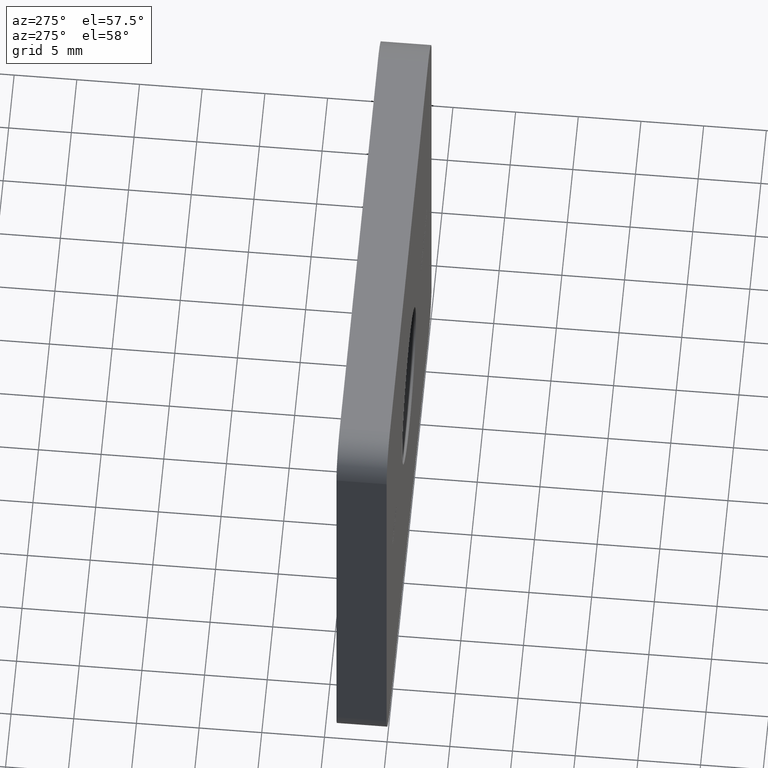
[diagram: clean part render]
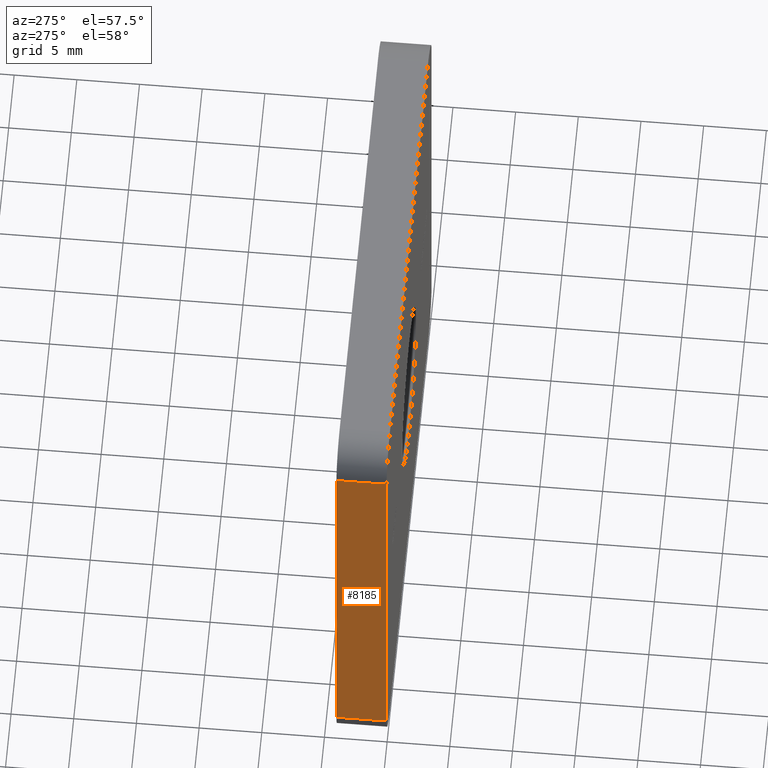
[diagram: same view with one face highlighted and labeled with its STEP entity id]
A machine part, auxiliary view. The second image highlights one B-rep face of the part: STEP entity #8185.
In plain terms, the highlighted planar face has unit normal (1, 0, -0).
Its self-contained STEP definition (entity closure, byte-faithful):
#1055 = VERTEX_POINT ( 'NONE', #6517 ) ;
#1904 = VECTOR ( 'NONE', #3356, 1000.000000000000000 ) ;
#2107 = EDGE_LOOP ( 'NONE', ( #4869, #5918, #6941, #16051 ) ) ;
#2726 = LINE ( 'NONE', #8944, #10073 ) ;
#3289 = VERTEX_POINT ( 'NONE', #15220 ) ;
#3356 = DIRECTION ( 'NONE',  ( -0.000000000000000000, 1.000000000000000000, -0.000000000000000000 ) ) ;
#3826 = VERTEX_POINT ( 'NONE', #7499 ) ;
#4354 = CARTESIAN_POINT ( 'NONE',  ( -20.50000000000000355, 4.000000000000000000, -17.49999999999999645 ) ) ;
#4441 = CARTESIAN_POINT ( 'NONE',  ( -20.50000000000000355, 0.000000000000000000, -17.49999999999999645 ) ) ;
#4869 = ORIENTED_EDGE ( 'NONE', *, *, #6839, .T. ) ;
#5130 = LINE ( 'NONE', #9687, #1904 ) ;
#5263 = CARTESIAN_POINT ( 'NONE',  ( -20.50000000000000355, 4.000000000000000000, -20.49999999999999645 ) ) ;
#5918 = ORIENTED_EDGE ( 'NONE', *, *, #8726, .T. ) ;
#6517 = CARTESIAN_POINT ( 'NONE',  ( -20.50000000000000355, 4.000000000000000000, -17.49999999999999645 ) ) ;
#6544 = LINE ( 'NONE', #15721, #9311 ) ;
#6839 = EDGE_CURVE ( 'NONE', #14208, #3826, #6544, .T. ) ;
#6941 = ORIENTED_EDGE ( 'NONE', *, *, #9810, .F. ) ;
#6970 = AXIS2_PLACEMENT_3D ( 'NONE', #5263, #15309, #14138 ) ;
#7057 = DIRECTION ( 'NONE',  ( 0.000000000000000000, -1.000000000000000000, 0.000000000000000000 ) ) ;
#7499 = CARTESIAN_POINT ( 'NONE',  ( -20.49999999999999645, 0.000000000000000000, 17.50000000000000711 ) ) ;
#7732 = DIRECTION ( 'NONE',  ( 1.692413147294445970E-16, 0.000000000000000000, 1.000000000000000000 ) ) ;
#8047 = DIRECTION ( 'NONE',  ( 1.692413147294445970E-16, 0.000000000000000000, 1.000000000000000000 ) ) ;
#8185 = ADVANCED_FACE ( 'NONE', ( #12460 ), #11575, .F. ) ;
#8726 = EDGE_CURVE ( 'NONE', #3826, #3289, #5130, .T. ) ;
#8944 = CARTESIAN_POINT ( 'NONE',  ( -20.50000000000000355, 4.000000000000000000, -20.49999999999999645 ) ) ;
#9311 = VECTOR ( 'NONE', #8047, 1000.000000000000000 ) ;
#9687 = CARTESIAN_POINT ( 'NONE',  ( -20.49999999999999645, 4.000000000000000000, 17.50000000000000711 ) ) ;
#9810 = EDGE_CURVE ( 'NONE', #1055, #3289, #2726, .T. ) ;
#9838 = VECTOR ( 'NONE', #7057, 1000.000000000000000 ) ;
#10073 = VECTOR ( 'NONE', #7732, 1000.000000000000000 ) ;
#11575 = PLANE ( 'NONE',  #6970 ) ;
#11994 = LINE ( 'NONE', #4354, #9838 ) ;
#12460 = FACE_OUTER_BOUND ( 'NONE', #2107, .T. ) ;
#14138 = DIRECTION ( 'NONE',  ( -1.692413147294445970E-16, 0.000000000000000000, -1.000000000000000000 ) ) ;
#14208 = VERTEX_POINT ( 'NONE', #4441 ) ;
#14975 = EDGE_CURVE ( 'NONE', #1055, #14208, #11994, .T. ) ;
#15220 = CARTESIAN_POINT ( 'NONE',  ( -20.49999999999999645, 4.000000000000000000, 17.50000000000000711 ) ) ;
#15309 = DIRECTION ( 'NONE',  ( 1.000000000000000000, 0.000000000000000000, -1.692413147294445970E-16 ) ) ;
#15721 = CARTESIAN_POINT ( 'NONE',  ( -20.50000000000000355, 0.000000000000000000, -20.49999999999999645 ) ) ;
#16051 = ORIENTED_EDGE ( 'NONE', *, *, #14975, .T. ) ;